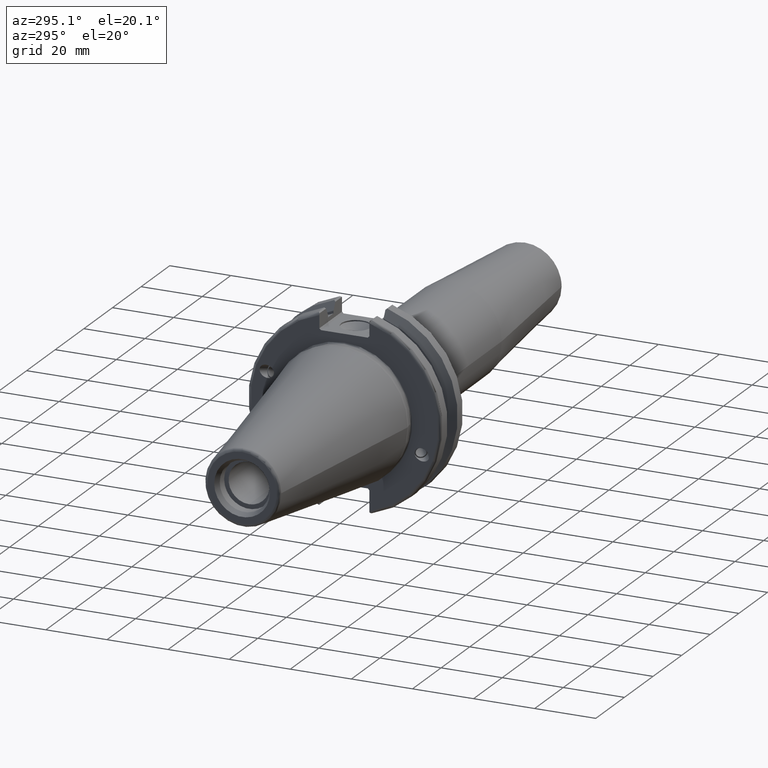
[diagram: clean part render]
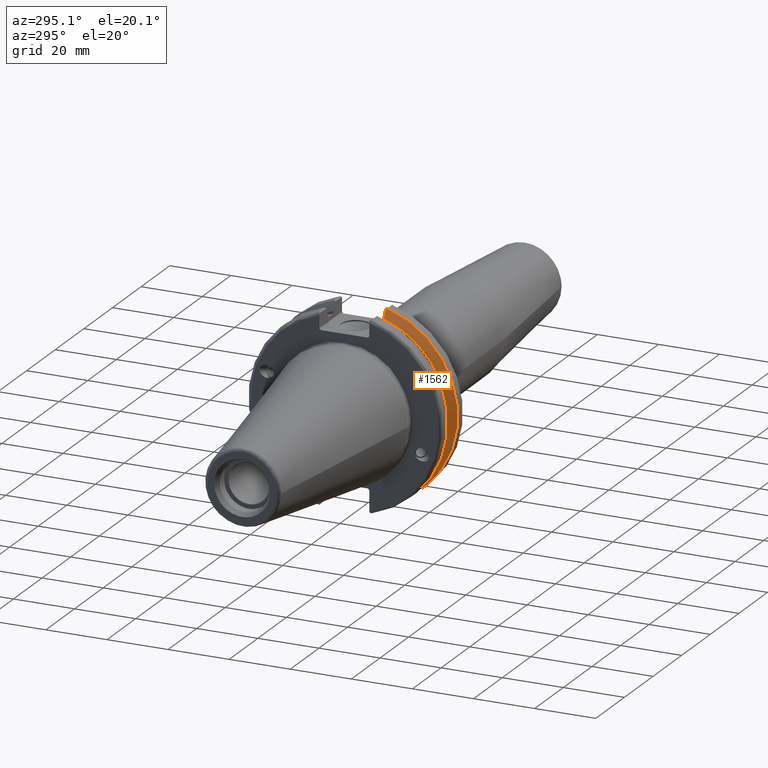
[diagram: same view with one face highlighted and labeled with its STEP entity id]
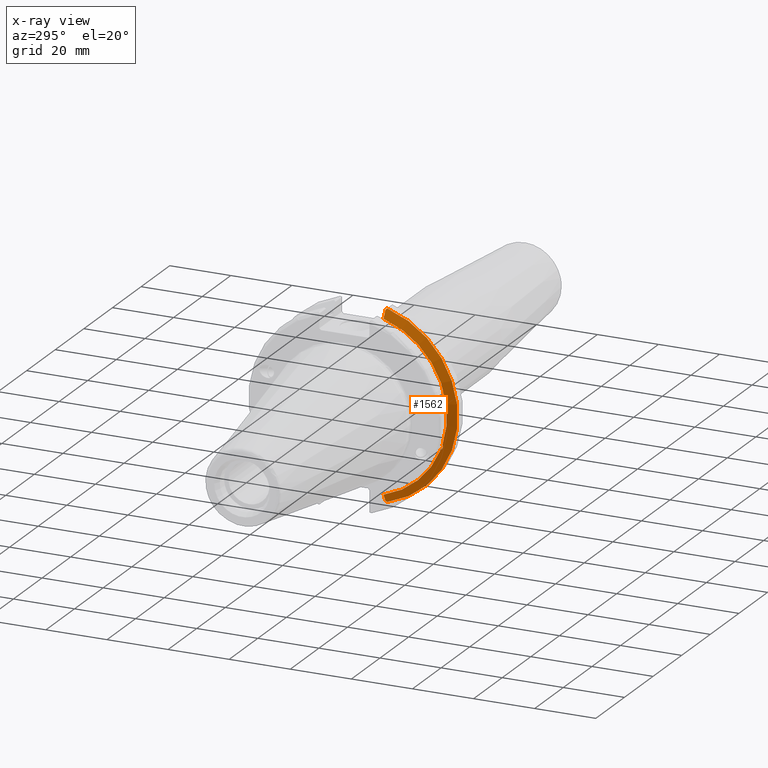
[diagram: x-ray of the same camera — body ghosted, the highlighted face saturated]
A machine part, auxiliary view. The second image highlights one B-rep face of the part: STEP entity #1562.
The next image is the same camera in x-ray: the body ghosted, the highlighted face saturated — about 0% of this face is hidden behind the body in this view.
In plain terms, the highlighted conical surface has half-angle 60 deg.
Its self-contained STEP definition (entity closure, byte-faithful):
#15=(
BOUNDED_CURVE()
B_SPLINE_CURVE(2,(#2600,#2601,#2602),.UNSPECIFIED.,.F.,.F.)
B_SPLINE_CURVE_WITH_KNOTS((3,3),(0.,0.276549142795512),.UNSPECIFIED.)
CURVE()
GEOMETRIC_REPRESENTATION_ITEM()
RATIONAL_B_SPLINE_CURVE((1.,1.00095203904184,1.00031614445102))
REPRESENTATION_ITEM('')
);
#16=(
BOUNDED_CURVE()
B_SPLINE_CURVE(2,(#2604,#2605,#2606),.UNSPECIFIED.,.F.,.F.)
B_SPLINE_CURVE_WITH_KNOTS((3,3),(0.,0.0639048713675663),.UNSPECIFIED.)
CURVE()
GEOMETRIC_REPRESENTATION_ITEM()
RATIONAL_B_SPLINE_CURVE((1.,1.00028444218286,1.00047644010578))
REPRESENTATION_ITEM('')
);
#17=(
BOUNDED_CURVE()
B_SPLINE_CURVE(2,(#2610,#2611,#2612),.UNSPECIFIED.,.F.,.F.)
B_SPLINE_CURVE_WITH_KNOTS((3,3),(0.329353533631206,0.393258405001023),
 .UNSPECIFIED.)
CURVE()
GEOMETRIC_REPRESENTATION_ITEM()
RATIONAL_B_SPLINE_CURVE((1.00047644010579,1.00028444218287,1.))
REPRESENTATION_ITEM('')
);
#18=(
BOUNDED_CURVE()
B_SPLINE_CURVE(2,(#2614,#2615,#2616),.UNSPECIFIED.,.F.,.F.)
B_SPLINE_CURVE_WITH_KNOTS((3,3),(0.0550586467393779,0.331607789535852),
 .UNSPECIFIED.)
CURVE()
GEOMETRIC_REPRESENTATION_ITEM()
RATIONAL_B_SPLINE_CURVE((1.00031614444922,1.00095203903643,1.))
REPRESENTATION_ITEM('')
);
#35=B_SPLINE_CURVE_WITH_KNOTS('',3,(#2507,#2508,#2509,#2510,#2511,#2512,
#2513,#2514),.UNSPECIFIED.,.F.,.F.,(4,2,2,4),(0.451995700189024,0.464547828547662,
0.504528771685167,0.544509714822672),.UNSPECIFIED.);
#39=B_SPLINE_CURVE_WITH_KNOTS('',3,(#2569,#2570,#2571,#2572,#2573,#2574,
#2575,#2576),.UNSPECIFIED.,.F.,.F.,(4,2,2,4),(0.544509714822672,0.584490657960178,
0.624471601097683,0.637023729456322),.UNSPECIFIED.);
#201=FACE_OUTER_BOUND('',#302,.T.);
#302=EDGE_LOOP('',(#1176,#1177,#1178,#1179,#1180,#1181,#1182,#1183,#1184));
#598=CIRCLE('',#1715,28.9593772964944);
#599=CIRCLE('',#1716,31.75);
#600=CIRCLE('',#1717,28.9593772964944);
#692=VERTEX_POINT('',#2504);
#693=VERTEX_POINT('',#2506);
#700=VERTEX_POINT('',#2567);
#706=VERTEX_POINT('',#2597);
#707=VERTEX_POINT('',#2599);
#708=VERTEX_POINT('',#2603);
#709=VERTEX_POINT('',#2607);
#710=VERTEX_POINT('',#2609);
#711=VERTEX_POINT('',#2613);
#866=EDGE_CURVE('',#693,#692,#35,.T.);
#874=EDGE_CURVE('',#692,#700,#39,.T.);
#883=EDGE_CURVE('',#700,#706,#598,.T.);
#884=EDGE_CURVE('',#706,#707,#15,.T.);
#885=EDGE_CURVE('',#708,#707,#16,.T.);
#886=EDGE_CURVE('',#709,#708,#599,.T.);
#887=EDGE_CURVE('',#710,#709,#17,.T.);
#888=EDGE_CURVE('',#710,#711,#18,.T.);
#889=EDGE_CURVE('',#711,#693,#600,.T.);
#1176=ORIENTED_EDGE('',*,*,#866,.T.);
#1177=ORIENTED_EDGE('',*,*,#874,.T.);
#1178=ORIENTED_EDGE('',*,*,#883,.T.);
#1179=ORIENTED_EDGE('',*,*,#884,.T.);
#1180=ORIENTED_EDGE('',*,*,#885,.F.);
#1181=ORIENTED_EDGE('',*,*,#886,.F.);
#1182=ORIENTED_EDGE('',*,*,#887,.F.);
#1183=ORIENTED_EDGE('',*,*,#888,.T.);
#1184=ORIENTED_EDGE('',*,*,#889,.T.);
#1526=CONICAL_SURFACE('',#1714,30.3546886482472,1.0471975511966);
#1562=ADVANCED_FACE('',(#201),#1526,.T.);
#1714=AXIS2_PLACEMENT_3D('',#2596,#1998,#1999);
#1715=AXIS2_PLACEMENT_3D('',#2598,#2000,#2001);
#1716=AXIS2_PLACEMENT_3D('',#2608,#2002,#2003);
#1717=AXIS2_PLACEMENT_3D('',#2617,#2004,#2005);
#1998=DIRECTION('center_axis',(1.,0.,0.));
#1999=DIRECTION('ref_axis',(0.,-1.,-1.22464679914735E-16));
#2000=DIRECTION('center_axis',(1.,0.,0.));
#2001=DIRECTION('ref_axis',(0.,0.,-1.));
#2002=DIRECTION('center_axis',(1.,0.,0.));
#2003=DIRECTION('ref_axis',(0.,0.,-1.));
#2004=DIRECTION('center_axis',(1.,0.,0.));
#2005=DIRECTION('ref_axis',(0.,0.,-1.));
#2504=CARTESIAN_POINT('',(13.2341,-27.51401829017,-10.0142836826777));
#2506=CARTESIAN_POINT('',(13.0491,-27.4956274489925,-9.09043478536245));
#2507=CARTESIAN_POINT('Ctrl Pts',(13.0491,-27.4956274489925,-9.09043478536245));
#2508=CARTESIAN_POINT('Ctrl Pts',(13.0632204071996,-27.5087667900418,-9.12860597076217));
#2509=CARTESIAN_POINT('Ctrl Pts',(13.0766929817857,-27.5206055003512,-9.16696618806877));
#2510=CARTESIAN_POINT('Ctrl Pts',(13.130081441159,-27.5642934663232,-9.32791534028656));
#2511=CARTESIAN_POINT('Ctrl Pts',(13.1682197084175,-27.5867382255984,-9.46717946402648));
#2512=CARTESIAN_POINT('Ctrl Pts',(13.2204106446058,-27.5847569104122,-9.74771639360671));
#2513=CARTESIAN_POINT('Ctrl Pts',(13.2341,-27.559599249844,-9.8890510252165));
#2514=CARTESIAN_POINT('Ctrl Pts',(13.2341,-27.51401829017,-10.0142836826777));
#2567=CARTESIAN_POINT('',(13.0491,-26.9060914640648,-10.7101715919071));
#2569=CARTESIAN_POINT('Ctrl Pts',(13.2341,-27.51401829017,-10.0142836826777));
#2570=CARTESIAN_POINT('Ctrl Pts',(13.2341,-27.4684373304961,-10.139516340139));
#2571=CARTESIAN_POINT('Ctrl Pts',(13.2204106446058,-27.3968610665578,-10.2639559818059));
#2572=CARTESIAN_POINT('Ctrl Pts',(13.1682197084175,-27.2180531796526,-10.4801333026531));
#2573=CARTESIAN_POINT('Ctrl Pts',(13.130081441159,-27.1113422433189,-10.5723885976054));
#2574=CARTESIAN_POINT('Ctrl Pts',(13.0766929817857,-26.9744191989197,-10.6676007180673));
#2575=CARTESIAN_POINT('Ctrl Pts',(13.0632204071996,-26.9406927482839,-10.6893765730703));
#2576=CARTESIAN_POINT('Ctrl Pts',(13.0491,-26.9060914640648,-10.7101715919071));
#2596=CARTESIAN_POINT('Origin',(13.8546833845378,0.,0.));
#2597=CARTESIAN_POINT('',(13.0491,-8.19,-27.7771386827498));
#2598=CARTESIAN_POINT('Origin',(13.0491,0.,0.));
#2599=CARTESIAN_POINT('',(14.3815146964874,-8.19,-30.1755016258903));
#2600=CARTESIAN_POINT('Ctrl Pts',(13.0491,-8.19,-27.7771386827498));
#2601=CARTESIAN_POINT('Ctrl Pts',(13.68773643849,-8.19,-28.9303689539956));
#2602=CARTESIAN_POINT('Ctrl Pts',(14.3815146964874,-8.19,-30.1755016258903));
#2603=CARTESIAN_POINT('',(14.6602667690756,-8.67204822802686,-30.5427254764662));
#2604=CARTESIAN_POINT('Ctrl Pts',(14.6602667690756,-8.67204822802687,-30.5427254764662));
#2605=CARTESIAN_POINT('Ctrl Pts',(14.5192085187837,-8.42917748262644,-30.357706789263));
#2606=CARTESIAN_POINT('Ctrl Pts',(14.3815146964874,-8.19,-30.1755016258903));
#2607=CARTESIAN_POINT('',(14.6602667690756,-8.67204822802685,30.5427254764662));
#2608=CARTESIAN_POINT('Origin',(14.6602667690756,0.,0.));
#2609=CARTESIAN_POINT('',(14.3815146964874,-8.19,30.1755016258903));
#2610=CARTESIAN_POINT('Ctrl Pts',(14.3815146964874,-8.19,30.1755016258903));
#2611=CARTESIAN_POINT('Ctrl Pts',(14.5192085187884,-8.42917748263465,30.3577067892692));
#2612=CARTESIAN_POINT('Ctrl Pts',(14.6602667690756,-8.67204822802686,30.5427254764662));
#2613=CARTESIAN_POINT('',(13.0491,-8.19,27.7771386827498));
#2614=CARTESIAN_POINT('Ctrl Pts',(14.3815146964874,-8.19,30.1755016258903));
#2615=CARTESIAN_POINT('Ctrl Pts',(13.687736438474,-8.19,28.9303689539668));
#2616=CARTESIAN_POINT('Ctrl Pts',(13.0491,-8.19,27.7771386827498));
#2617=CARTESIAN_POINT('Origin',(13.0491,0.,0.));